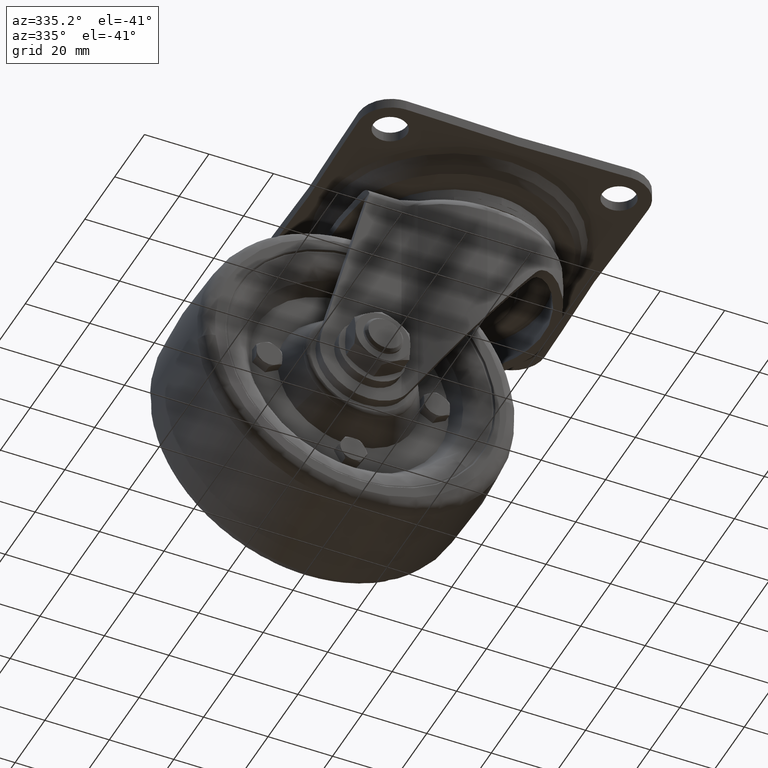
[diagram: clean part render]
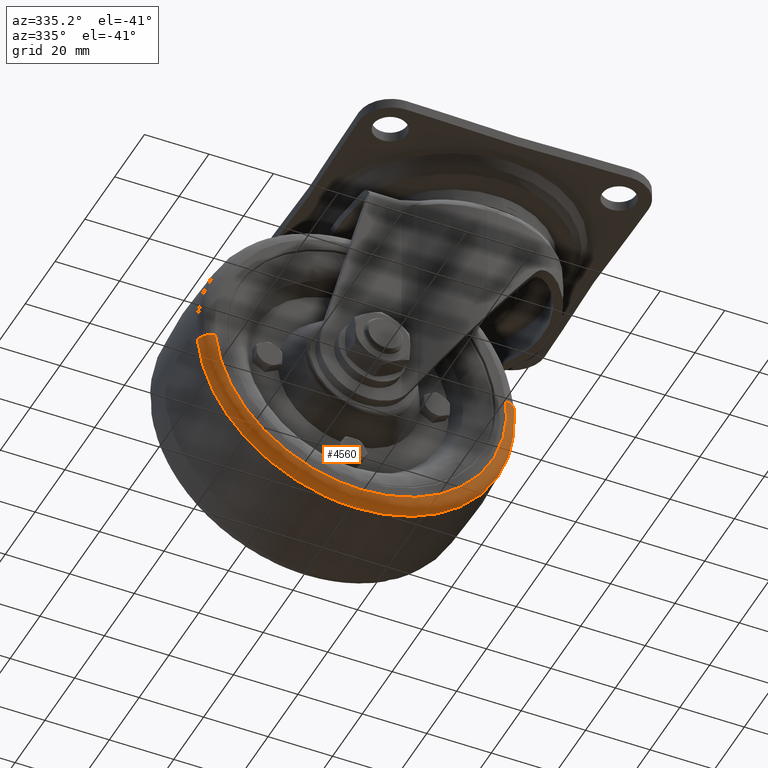
[diagram: same view with one face highlighted and labeled with its STEP entity id]
A machine part, auxiliary view. The second image highlights one B-rep face of the part: STEP entity #4560.
In plain terms, the highlighted face is a freeform B-spline surface patch.
Its self-contained STEP definition (entity closure, byte-faithful):
#4332=CARTESIAN_POINT('',(-37.0,-15.410949828319410,-129.206241970835210));
#4333=VERTEX_POINT('',#4332);
#4354=CARTESIAN_POINT('',(12.015990861135540,-15.410952332544690,-75.677172813207420));
#4355=VERTEX_POINT('',#4354);
#4369=CARTESIAN_POINT('',(-37.0,-15.410949828319410,-129.206241970835210));
#4370=CARTESIAN_POINT('',(12.206241249842028,-15.410949844820983,-129.206241956974740));
#4371=CARTESIAN_POINT('',(12.206241421474340,-15.410952131703141,-80.000000190541328));
#4372=CARTESIAN_POINT('',(12.206241429027981,-15.410952232350384,-77.834399973096069));
#4373=CARTESIAN_POINT('',(12.015990861135533,-15.410952332544683,-75.677172813207420));
#4381=(BOUNDED_CURVE()B_SPLINE_CURVE(2,(#4369,#4370,#4371,#4372,#4373),.UNSPECIFIED.,.F.,.U.)B_SPLINE_CURVE_WITH_KNOTS((3,2,3),(0.0,0.250000000000000,0.265281545703138),.UNSPECIFIED.)CURVE()GEOMETRIC_REPRESENTATION_ITEM()RATIONAL_B_SPLINE_CURVE((1.0,0.707106781186548,1.0,0.982096555562253,0.966381849559857))REPRESENTATION_ITEM(''));
#4382=EDGE_CURVE('',#4333,#4355,#4381,.T.);
#4431=CARTESIAN_POINT('',(-86.015990900841317,-15.410951934033189,-84.322827190294305));
#4432=VERTEX_POINT('',#4431);
#4433=CARTESIAN_POINT('',(-86.015990900841317,-15.410951934033191,-84.322827190294305));
#4434=CARTESIAN_POINT('',(-82.057624747905450,-15.410949846406760,-129.206241986028350));
#4435=CARTESIAN_POINT('',(-37.0,-15.410949828319410,-129.206241970835210));
#4443=(BOUNDED_CURVE()B_SPLINE_CURVE(2,(#4433,#4434,#4435),.UNSPECIFIED.,.F.,.U.)B_SPLINE_CURVE_WITH_KNOTS((3,3),(0.765281544184648,1.0),.UNSPECIFIED.)CURVE()GEOMETRIC_REPRESENTATION_ITEM()RATIONAL_B_SPLINE_CURVE((0.966381852682920,0.725010223845274,1.0))REPRESENTATION_ITEM(''));
#4444=EDGE_CURVE('',#4432,#4333,#4443,.T.);
#4467=CARTESIAN_POINT('',(-86.155268277756576,-15.147359737483203,-82.953607112266610));
#4468=CARTESIAN_POINT('',(-86.095171584668520,-15.147359737483212,-83.635035916128331));
#4469=CARTESIAN_POINT('',(-81.709922660005105,-15.147359737483207,-133.358818970045460));
#4470=CARTESIAN_POINT('',(-32.675551844979807,-15.147359737483209,-129.034370815025310));
#4471=CARTESIAN_POINT('',(16.358818970045487,-15.147359737483207,-124.709922660005110));
#4472=CARTESIAN_POINT('',(11.973570045366952,-15.147359737483210,-74.986139605916151));
#4473=CARTESIAN_POINT('',(11.913473352264070,-15.147359737483210,-74.304710801886628));
#4474=CARTESIAN_POINT('',(-86.003761661389092,-19.262937254660308,-82.944503489494593));
#4475=CARTESIAN_POINT('',(-85.943850198632248,-19.262937254660319,-83.623831990052395));
#4476=CARTESIAN_POINT('',(-81.572117510372024,-19.262937254660308,-133.194356148485070));
#4477=CARTESIAN_POINT('',(-32.688880680943470,-19.262937254660308,-128.883236829428600));
#4478=CARTESIAN_POINT('',(16.194356148485088,-19.262937254660308,-124.572117510372010));
#4479=CARTESIAN_POINT('',(11.822623460209797,-19.262937254660304,-75.001593351768065));
#4480=CARTESIAN_POINT('',(11.762711997438196,-19.262937254660319,-74.322264851042974));
#4481=CARTESIAN_POINT('',(-81.900152972032515,-18.991289051895215,-82.697928743073618));
#4482=CARTESIAN_POINT('',(-81.845258536353299,-18.991289051895219,-83.320369807987603));
#4483=CARTESIAN_POINT('',(-77.839617748773122,-18.991289051895215,-128.739824195938180));
#4484=CARTESIAN_POINT('',(-33.049896776417469,-18.991289051895219,-124.789720972355650));
#4485=CARTESIAN_POINT('',(11.739824195938176,-18.991289051895215,-120.839617748773090));
#4486=CARTESIAN_POINT('',(7.734183408344158,-18.991289051895219,-75.420163360665640));
#4487=CARTESIAN_POINT('',(7.679288972651428,-18.991289051895219,-74.797722295598348));
#4495=(BOUNDED_SURFACE()B_SPLINE_SURFACE(2,2,((#4467,#4474,#4481),(#4468,#4475,#4482),(#4469,#4476,#4483),(#4470,#4477,#4484),(#4471,#4478,#4485),(#4472,#4479,#4486),(#4473,#4480,#4487)),.UNSPECIFIED.,.F.,.F.,.U.)B_SPLINE_SURFACE_WITH_KNOTS((3,1,2,1,3),(3,3),(0.0,1.631162826149379,83.189304134061956,164.747445441974610,166.378608268532700),(0.0,6.765941649865971),.UNSPECIFIED.)GEOMETRIC_REPRESENTATION_ITEM()RATIONAL_B_SPLINE_SURFACE(((0.927250176332768,0.646353670203848,0.928162198201254),(0.921881370035275,0.642611263091323,0.922788111269822),(0.648072248861653,0.451748500351499,0.648709677765316),(0.916512563737781,0.638868855978797,0.917414024338389),(0.648072248861653,0.451748500351499,0.648709677765316),(0.921881370036620,0.642611263092260,0.922788111271168),(0.927250176335459,0.646353670205724,0.928162198203948)))REPRESENTATION_ITEM('')SURFACE());
#4496=ORIENTED_EDGE('',*,*,#4444,.T.);
#4497=ORIENTED_EDGE('',*,*,#4382,.T.);
#4498=CARTESIAN_POINT('',(8.052541169500373,-19.0,-76.026718089446604));
#4499=VERTEX_POINT('',#4498);
#4500=CARTESIAN_POINT('',(12.015990861135540,-15.410952332544685,-75.677172813207420));
#4501=CARTESIAN_POINT('',(11.646730827289339,-18.999999976499954,-75.709738661166099));
#4502=CARTESIAN_POINT('',(8.052541169500373,-19.000000000000004,-76.026718089446604));
#4510=(BOUNDED_CURVE()B_SPLINE_CURVE(2,(#4500,#4501,#4502),.UNSPECIFIED.,.F.,.U.)B_SPLINE_CURVE_WITH_KNOTS((3,3),(-1.718114524715209,-0.279319867733089),.UNSPECIFIED.)CURVE()GEOMETRIC_REPRESENTATION_ITEM()RATIONAL_B_SPLINE_CURVE((0.892442017730393,0.662980233644246,0.893261815779056))REPRESENTATION_ITEM(''));
#4511=EDGE_CURVE('',#4355,#4499,#4510,.T.);
#4512=ORIENTED_EDGE('',*,*,#4511,.T.);
#4513=CARTESIAN_POINT('',(-37.0,-19.0,-125.227408000000200));
#4514=VERTEX_POINT('',#4513);
#4515=CARTESIAN_POINT('',(-37.0,-19.0,-125.227408000000200));
#4516=CARTESIAN_POINT('',(8.227408002883095,-18.999999999999993,-125.227407999745960));
#4517=CARTESIAN_POINT('',(8.227408006031425,-19.0,-79.999999999468088));
#4518=CARTESIAN_POINT('',(8.227408006169988,-19.0,-78.009511040300083));
#4519=CARTESIAN_POINT('',(8.052541169500373,-19.000000000000004,-76.026718089446604));
#4527=(BOUNDED_CURVE()B_SPLINE_CURVE(2,(#4515,#4516,#4517,#4518,#4519),.UNSPECIFIED.,.F.,.U.)B_SPLINE_CURVE_WITH_KNOTS((3,2,3),(0.0,0.250000000000000,0.265281545145131),.UNSPECIFIED.)CURVE()GEOMETRIC_REPRESENTATION_ITEM()RATIONAL_B_SPLINE_CURVE((1.0,0.707106781186548,1.0,0.982096556215998,0.966381850707505))REPRESENTATION_ITEM(''));
#4528=EDGE_CURVE('',#4514,#4499,#4527,.T.);
#4529=ORIENTED_EDGE('',*,*,#4528,.F.);
#4530=CARTESIAN_POINT('',(-82.052541169500373,-19.0,-83.973281910553396));
#4531=VERTEX_POINT('',#4530);
#4532=CARTESIAN_POINT('',(-82.052541169500373,-19.000000000000004,-83.973281910553396));
#4533=CARTESIAN_POINT('',(-78.414249769815655,-18.999999999999996,-125.227408000277860));
#4534=CARTESIAN_POINT('',(-37.0,-19.0,-125.227408000000200));
#4542=(BOUNDED_CURVE()B_SPLINE_CURVE(2,(#4532,#4533,#4534),.UNSPECIFIED.,.F.,.U.)B_SPLINE_CURVE_WITH_KNOTS((3,3),(0.765281545145131,1.0),.UNSPECIFIED.)CURVE()GEOMETRIC_REPRESENTATION_ITEM()RATIONAL_B_SPLINE_CURVE((0.966381850707505,0.725010224970549,1.0))REPRESENTATION_ITEM(''));
#4543=EDGE_CURVE('',#4531,#4514,#4542,.T.);
#4544=ORIENTED_EDGE('',*,*,#4543,.F.);
#4545=CARTESIAN_POINT('',(-86.015990900841317,-15.410951934033188,-84.322827190294305));
#4546=CARTESIAN_POINT('',(-85.646731188429357,-18.999999976433546,-84.290261370683609));
#4547=CARTESIAN_POINT('',(-82.052541169500373,-19.0,-83.973281910553396));
#4555=(BOUNDED_CURVE()B_SPLINE_CURVE(2,(#4545,#4546,#4547),.UNSPECIFIED.,.F.,.U.)B_SPLINE_CURVE_WITH_KNOTS((3,3),(-1.718114632204475,-0.279319867733087),.UNSPECIFIED.)CURVE()GEOMETRIC_REPRESENTATION_ITEM()RATIONAL_B_SPLINE_CURVE((0.892442052015592,0.662980216440402,0.893261815779057))REPRESENTATION_ITEM(''));
#4556=EDGE_CURVE('',#4432,#4531,#4555,.T.);
#4557=ORIENTED_EDGE('',*,*,#4556,.F.);
#4558=EDGE_LOOP('',(#4496,#4497,#4512,#4529,#4544,#4557));
#4559=FACE_OUTER_BOUND('',#4558,.T.);
#4560=ADVANCED_FACE('',(#4559),#4495,.T.);